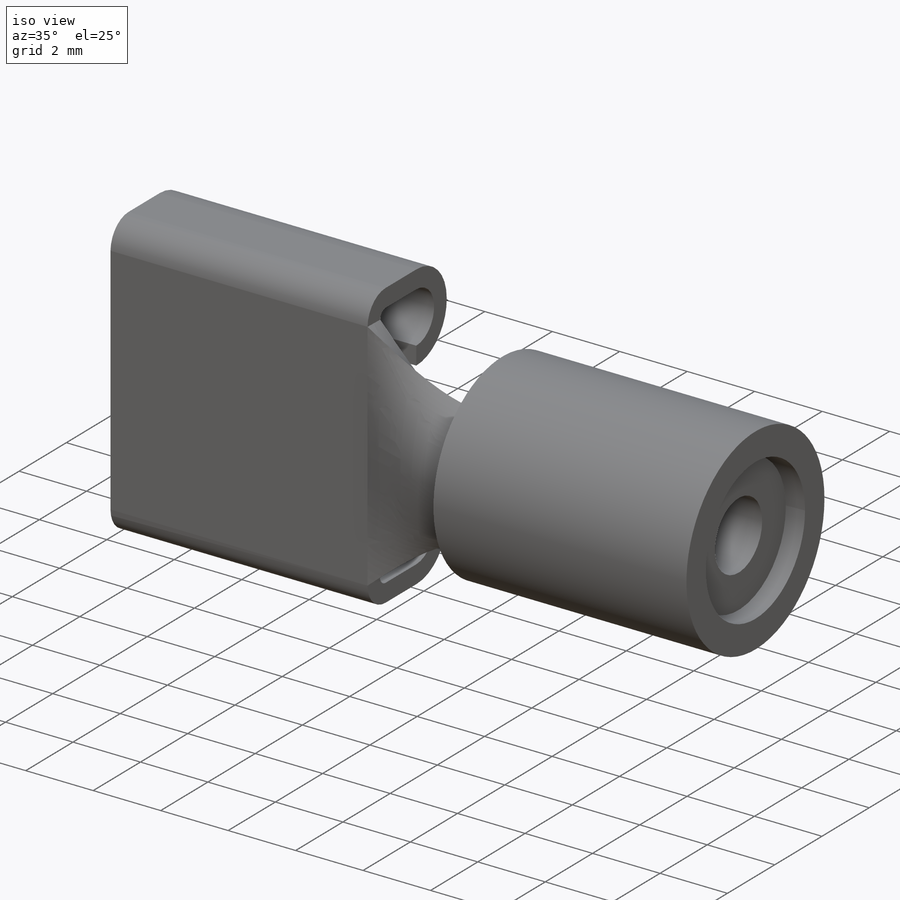
[diagram: iso view]
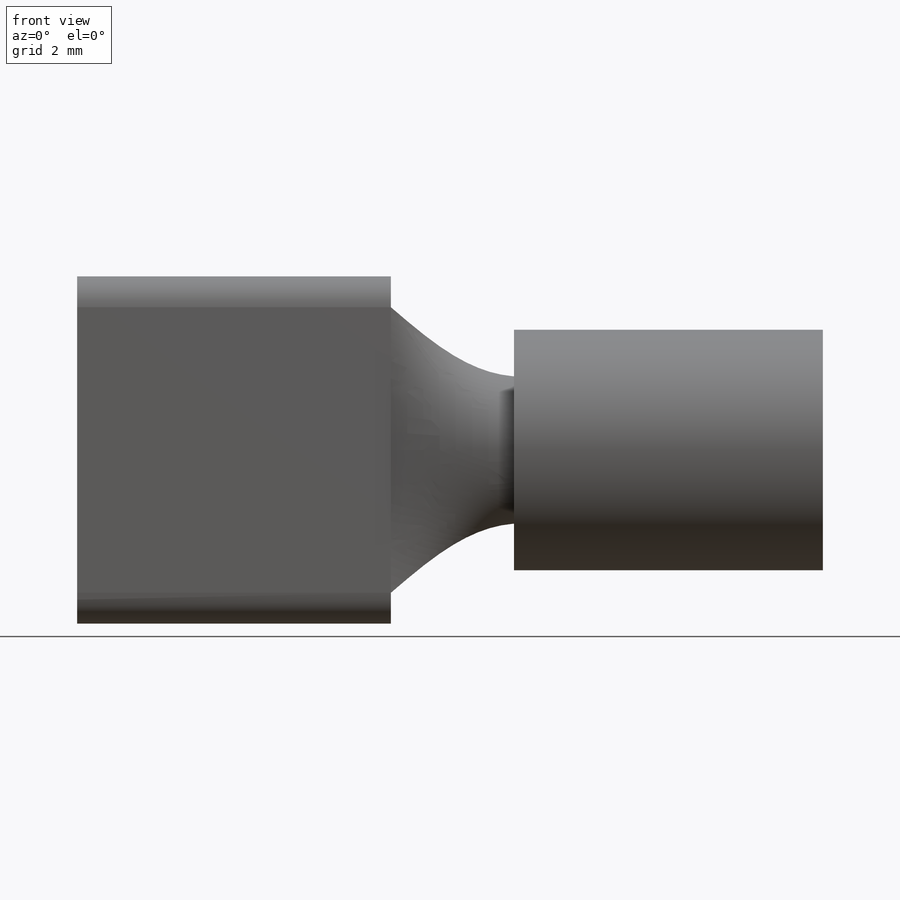
[diagram: front view]
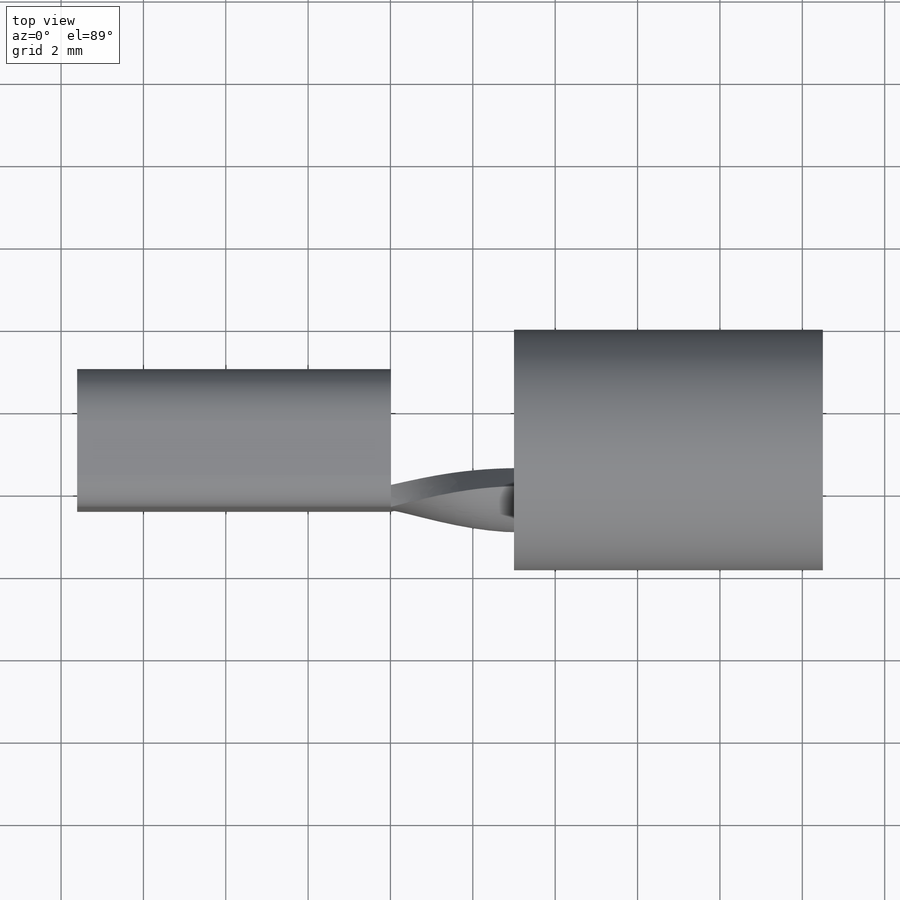
[diagram: top view]
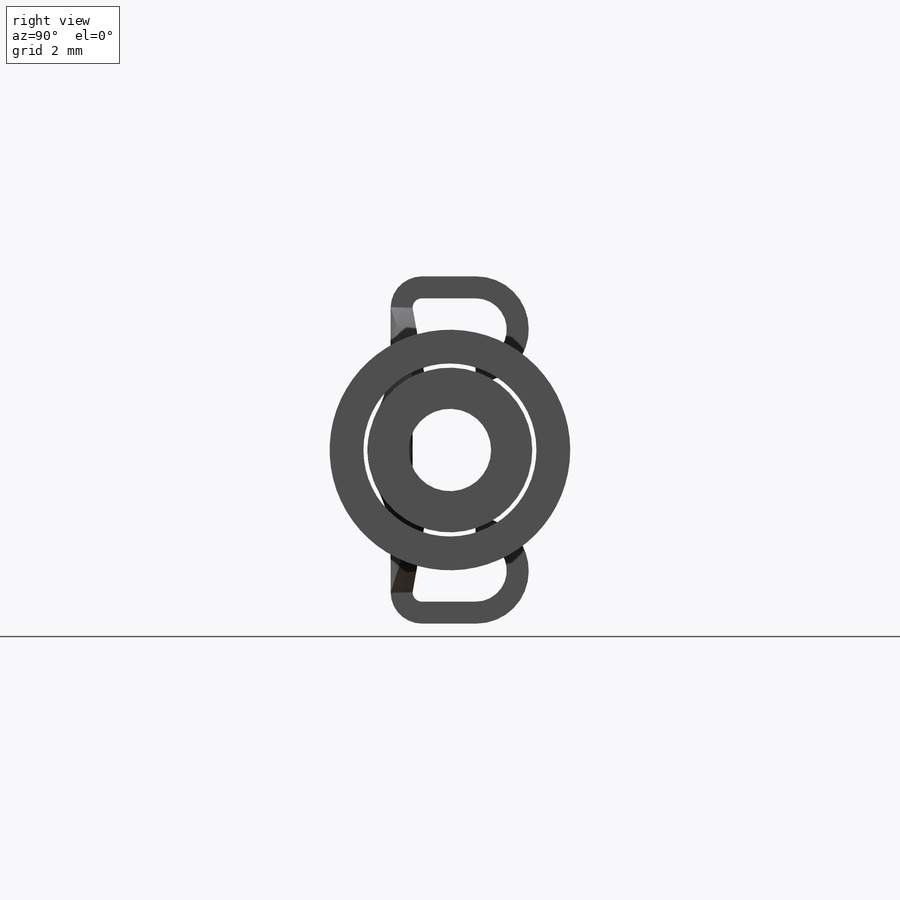
[diagram: right view]
SOLIDWORKS PART (.sldprt)
format: sldprt  version: not decoded by parser v0  size: 602,112 bytes
history: native  units: mm
features: sketch x9, extrude x6, fillet x4, plane x4, chamfer x2, material x1, shell x1, cut_extrude x1 (+12 scaffold rows collapsed)
feature tree (40):
  scaffold x12  (default folders/planes/origin — collapsed)
  material  "Material <not specified>"
  sketch  "Sketch1"  dims[c1.D3=2.5527mm c1.D1=5.7912mm c1.D2=2.8194mm c1.D4=2.4511mm c2.D1=0.0mm]
  extrude  "Extrude1"  Depth=5.18mm
  sketch  "Sketch2"  dims[D2=1.9939mm D1=2.4511mm D3=4.6736mm D4=0.889mm D5=1.9558mm D6=1.9939mm]
  extrude  "Extrude2"  Depth=6.93mm
  sketch  "Sketch3"  dims[D1=0.889mm D2=9.8552mm D3=4.7752mm D4=5.6642mm]
  extrude  "Extrude3"  Depth=9.5mm
  chamfer  "Chamfer2"  Distance=0.56mm
  chamfer  "Chamfer3"  Distance=0.89mm
  fillet  "Fillet1"  Radius=1.27mm
  fillet  "Fillet2"  Radius=1.27mm
  shell  "Shell1"  Thickness=0.7112mm
  fillet  "Fillet4"  Radius=1.27mm
  fillet  "Fillet5"  Radius=2mm
  sketch  "Sketch6"  dims[c1.D4=~0.761735mm c1.D6=1.2888mm c1.D7=0.7554mm c1.D9=0.7554mm c1.D11=0.5588mm c1.D2=~0.76183mm c2.D4=0.2286mm c2.D6=1.2888mm c2.D7=0.7554mm c2.D1=2.1336mm c2.D2=3.4544mm c2.D3=~0.533135mm c2.D5=0.73mm c2.D8=1.302mm c3.D8=~179.958701deg c4.D8=1.302mm c5.D8=~0.041299deg c5.D9=1.5306mm c5.D10=0.5334mm c5.D11=1.6388mm c6.D9=~3.276062mm c6.D5=0.5334mm c6.D8=0.5334mm c7.D8=~0.027598deg]
  extrude  "Extrude5"  Depth=7.62mm
  plane  "Plane2"  Offset=4mm
  sketch  "Sketch7"  dims[c1.D2=1.27mm c1.D3=2.0mm c1.D4=1.46mm c1.D1=3.04mm c1.D5=0.2286mm c2.D1=0.0mm]
  extrude  "Extrude6"  Depth=3.048mm
  sketch  "Sketch8"  dims[D1=0.3175mm]
  cut_extrude  "Extrude7"  [1 undecoded]
  plane  "Plane3"
  sketch  "Sketch10"  dims[D2=~0.53327mm D1=0.0mm]
  plane  "Plane4"  Offset=3.175mm
  sketch  "Sketch11"  dims[D1=~1.872755mm]
  plane  "Plane5"  Offset=0.5mm
  sketch  "Sketch13"  dims[c1.D1=2.921mm c1.D2=5.842mm c2.D1=0.1mm]
  extrude  "Boss-Extrude1"  Depth=7.5mm
decode coverage: 22 of 23 modeling features carry decoded parameters
note: ~ marks probable driven/reference dimensions
note: 1 parameter value undecoded
note: suppression state not decoded; provenance and decode notes live in map.json
